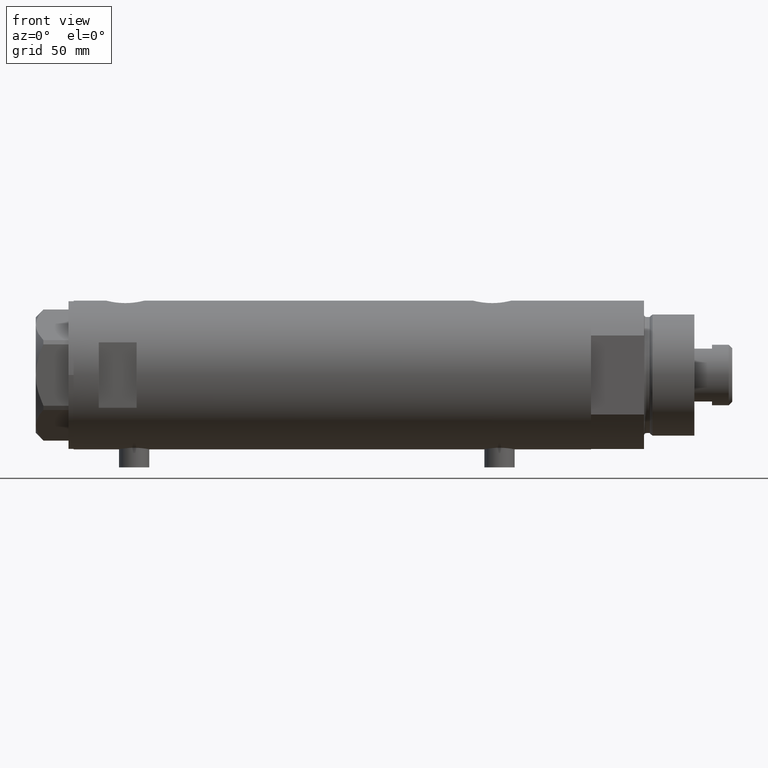
[diagram: clean part render]
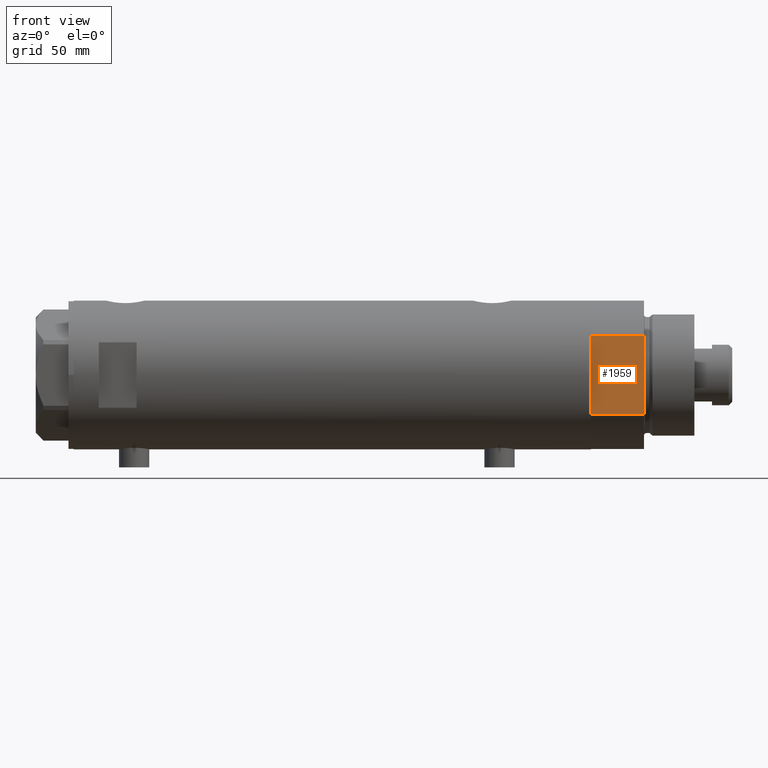
[diagram: same view with one face highlighted and labeled with its STEP entity id]
A machine part, front view. The second image highlights one B-rep face of the part: STEP entity #1959.
In plain terms, the highlighted planar face has unit normal (-0, 1, 0).
Its self-contained STEP definition (entity closure, byte-faithful):
#3 = DIRECTION ( 'NONE',  ( -1.000000000000000000, -0.000000000000000000, -0.000000000000000000 ) ) ;
#87 = DIRECTION ( 'NONE',  ( -1.000000000000000000, -0.000000000000000000, -0.000000000000000000 ) ) ;
#121 = EDGE_CURVE ( 'NONE', #2850, #3250, #3717, .T. ) ;
#255 = VECTOR ( 'NONE', #1860, 1000.000000000000000 ) ;
#304 = LINE ( 'NONE', #2388, #3264 ) ;
#339 = ORIENTED_EDGE ( 'NONE', *, *, #1077, .F. ) ;
#395 = FACE_OUTER_BOUND ( 'NONE', #2379, .T. ) ;
#491 = ORIENTED_EDGE ( 'NONE', *, *, #1061, .F. ) ;
#504 = CARTESIAN_POINT ( 'NONE',  ( -15.66045976336583401, -25.00000000000000000, 0.000000000000000000 ) ) ;
#1061 = EDGE_CURVE ( 'NONE', #3250, #4449, #1316, .T. ) ;
#1077 = EDGE_CURVE ( 'NONE', #1102, #2850, #2543, .T. ) ;
#1102 = VERTEX_POINT ( 'NONE', #3487 ) ;
#1144 = ORIENTED_EDGE ( 'NONE', *, *, #2439, .F. ) ;
#1162 = VECTOR ( 'NONE', #4072, 1000.000000000000000 ) ;
#1316 = LINE ( 'NONE', #2685, #3258 ) ;
#1552 = DIRECTION ( 'NONE',  ( 0.000000000000000000, -0.000000000000000000, 1.000000000000000000 ) ) ;
#1681 = ORIENTED_EDGE ( 'NONE', *, *, #1749, .T. ) ;
#1749 = EDGE_CURVE ( 'NONE', #3856, #3748, #304, .T. ) ;
#1860 = DIRECTION ( 'NONE',  ( -1.000000000000000000, -0.000000000000000000, -0.000000000000000000 ) ) ;
#1882 = LINE ( 'NONE', #3218, #255 ) ;
#1896 = CARTESIAN_POINT ( 'NONE',  ( -7.141428428542853091, -25.00000000000000000, 0.000000000000000000 ) ) ;
#1897 = DIRECTION ( 'NONE',  ( -0.000000000000000000, 1.000000000000000000, 0.000000000000000000 ) ) ;
#1959 = ADVANCED_FACE ( 'NONE', ( #395 ), #3141, .F. ) ;
#2349 = EDGE_CURVE ( 'NONE', #3748, #4449, #3801, .T. ) ;
#2369 = CARTESIAN_POINT ( 'NONE',  ( -15.66045976336583401, -25.00000000000000000, 0.000000000000000000 ) ) ;
#2379 = EDGE_LOOP ( 'NONE', ( #2454, #491, #4273, #339, #1144, #1681 ) ) ;
#2388 = CARTESIAN_POINT ( 'NONE',  ( 15.66045976336583401, -25.00000000000000000, 0.000000000000000000 ) ) ;
#2439 = EDGE_CURVE ( 'NONE', #3856, #1102, #1882, .T. ) ;
#2454 = ORIENTED_EDGE ( 'NONE', *, *, #2349, .T. ) ;
#2543 = LINE ( 'NONE', #3152, #2893 ) ;
#2645 = CARTESIAN_POINT ( 'NONE',  ( -15.66045976336582690, -25.00000000000000000, 0.000000000000000000 ) ) ;
#2685 = CARTESIAN_POINT ( 'NONE',  ( -15.66045976336583401, -25.00000000000000000, 0.000000000000000000 ) ) ;
#2850 = VERTEX_POINT ( 'NONE', #1896 ) ;
#2893 = VECTOR ( 'NONE', #87, 1000.000000000000000 ) ;
#3107 = AXIS2_PLACEMENT_3D ( 'NONE', #504, #1897, #1552 ) ;
#3141 = PLANE ( 'NONE',  #3107 ) ;
#3152 = CARTESIAN_POINT ( 'NONE',  ( -15.66045976336583401, -25.00000000000000000, 0.000000000000000000 ) ) ;
#3218 = CARTESIAN_POINT ( 'NONE',  ( -15.66045976336583401, -25.00000000000000000, 0.000000000000000000 ) ) ;
#3250 = VERTEX_POINT ( 'NONE', #2645 ) ;
#3258 = VECTOR ( 'NONE', #4062, 1000.000000000000000 ) ;
#3264 = VECTOR ( 'NONE', #3755, 1000.000000000000000 ) ;
#3311 = CARTESIAN_POINT ( 'NONE',  ( 15.66045976336583401, -25.00000000000000000, 0.000000000000000000 ) ) ;
#3487 = CARTESIAN_POINT ( 'NONE',  ( 7.141428428542853091, -25.00000000000000000, 0.000000000000000000 ) ) ;
#3499 = CARTESIAN_POINT ( 'NONE',  ( -15.66045976336583401, -25.00000000000000000, 21.00000000000000000 ) ) ;
#3626 = VECTOR ( 'NONE', #3, 1000.000000000000000 ) ;
#3717 = LINE ( 'NONE', #2369, #1162 ) ;
#3748 = VERTEX_POINT ( 'NONE', #3909 ) ;
#3755 = DIRECTION ( 'NONE',  ( -0.000000000000000000, -0.000000000000000000, 1.000000000000000000 ) ) ;
#3801 = LINE ( 'NONE', #3499, #3626 ) ;
#3856 = VERTEX_POINT ( 'NONE', #3311 ) ;
#3909 = CARTESIAN_POINT ( 'NONE',  ( 15.66045976336583045, -25.00000000000000000, 21.00000000000000355 ) ) ;
#4062 = DIRECTION ( 'NONE',  ( -0.000000000000000000, -0.000000000000000000, 1.000000000000000000 ) ) ;
#4072 = DIRECTION ( 'NONE',  ( -1.000000000000000000, -0.000000000000000000, -0.000000000000000000 ) ) ;
#4273 = ORIENTED_EDGE ( 'NONE', *, *, #121, .F. ) ;
#4442 = CARTESIAN_POINT ( 'NONE',  ( -15.66045976336583045, -24.99999999999999645, 20.99999999999999645 ) ) ;
#4449 = VERTEX_POINT ( 'NONE', #4442 ) ;